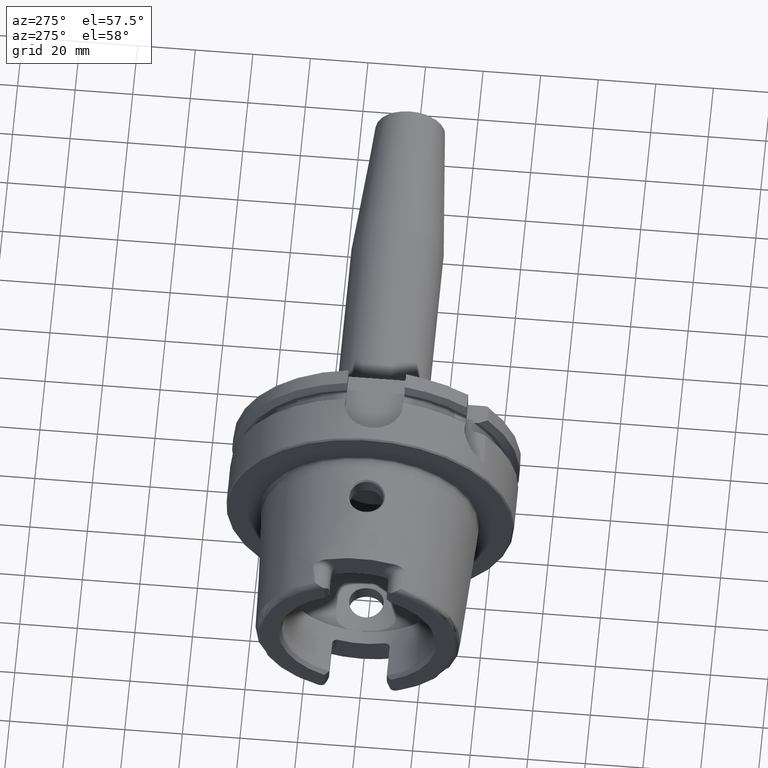
[diagram: clean part render]
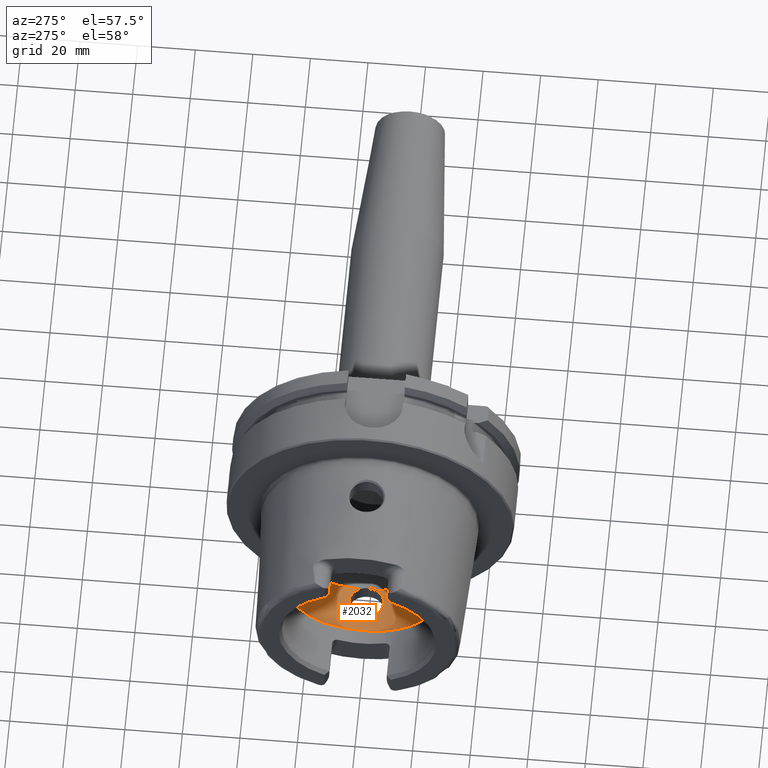
[diagram: same view with one face highlighted and labeled with its STEP entity id]
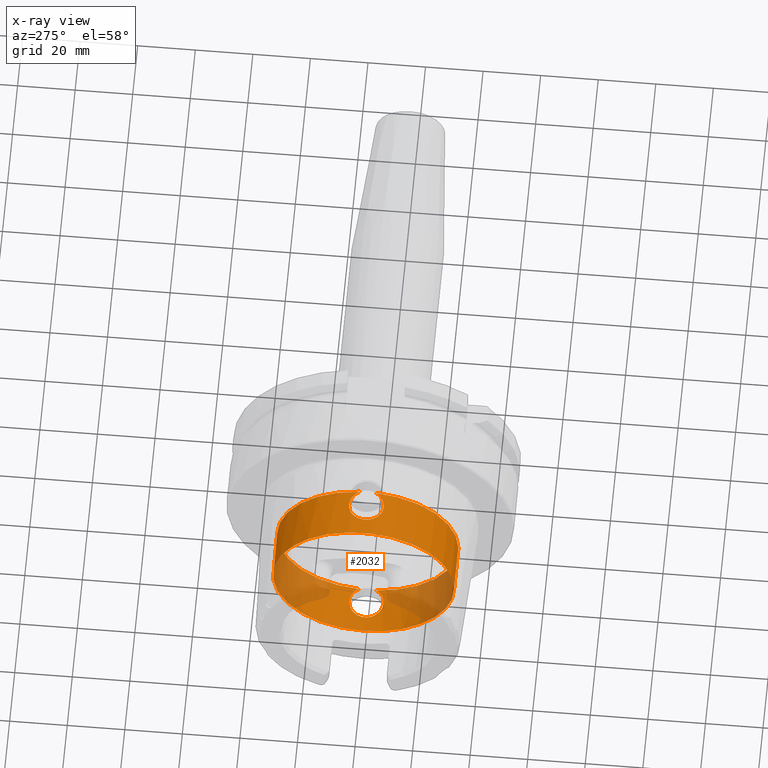
[diagram: x-ray of the same camera — body ghosted, the highlighted face saturated]
A machine part, auxiliary view. The second image highlights one B-rep face of the part: STEP entity #2032.
The next image is the same camera in x-ray: the body ghosted, the highlighted face saturated — about 27% of this face is hidden behind the body in this view.
In plain terms, the highlighted cylindrical surface (bore or boss wall) has radius 31.5 mm, axis along (-1, 0, 0).
Its self-contained STEP definition (entity closure, byte-faithful):
#49=B_SPLINE_CURVE_WITH_KNOTS('',3,(#3627,#3628,#3629,#3630,#3631,#3632,
#3633,#3634,#3635,#3636,#3637,#3638,#3639,#3640,#3641,#3642,#3643,#3644,
#3645,#3646,#3647,#3648,#3649,#3650,#3651,#3652,#3653,#3654,#3655,#3656,
#3657),.UNSPECIFIED.,.F.,.F.,(4,2,2,2,2,2,2,2,2,2,2,3,2,2,4),(-2.42966289251045,
-2.26609494287567,-2.03948128472637,-1.81286762657707,-1.58625396842777,
-1.35964031027847,-1.1330370617835,-0.906433813288535,-0.679830564793567,
-0.453227316298599,-0.226613658149299,0.,0.2266136581493,0.453227316298599,
0.616795265988555),.UNSPECIFIED.);
#54=B_SPLINE_CURVE_WITH_KNOTS('',3,(#3819,#3820,#3821,#3822,#3823,#3824,
#3825,#3826,#3827,#3828,#3829,#3830,#3831,#3832,#3833,#3834,#3835,#3836,
#3837,#3838,#3839,#3840,#3841,#3842,#3843,#3844,#3845,#3846,#3847,#3848,
#3849),.UNSPECIFIED.,.F.,.F.,(4,2,2,3,2,2,2,2,2,2,2,2,2,2,4),(-0.616795265933374,
-0.453227316298598,-0.226613658149299,0.,0.2266136581493,0.453227316298599,
0.679830564793567,0.906433813288535,1.1330370617835,1.35964031027847,1.58625396842777,
1.81286762657707,2.03948128472637,2.26609494287567,2.42966289256562),
 .UNSPECIFIED.);
#187=CYLINDRICAL_SURFACE('',#2230,31.5);
#248=FACE_OUTER_BOUND('',#378,.T.);
#378=EDGE_LOOP('',(#1531,#1532,#1533,#1534,#1535,#1536,#1537,#1538,#1539));
#509=LINE('',#3865,#615);
#615=VECTOR('',#2631,31.5);
#726=CIRCLE('',#2231,31.5);
#727=CIRCLE('',#2232,31.5);
#728=CIRCLE('',#2233,31.5);
#729=CIRCLE('',#2234,31.5);
#730=CIRCLE('',#2235,31.5);
#903=VERTEX_POINT('',#3615);
#904=VERTEX_POINT('',#3626);
#907=VERTEX_POINT('',#3806);
#909=VERTEX_POINT('',#3818);
#910=VERTEX_POINT('',#3862);
#911=VERTEX_POINT('',#3864);
#912=VERTEX_POINT('',#3866);
#1138=EDGE_CURVE('',#904,#903,#49,.T.);
#1144=EDGE_CURVE('',#909,#907,#54,.T.);
#1147=EDGE_CURVE('',#910,#907,#726,.T.);
#1148=EDGE_CURVE('',#910,#911,#509,.T.);
#1149=EDGE_CURVE('',#911,#912,#727,.T.);
#1150=EDGE_CURVE('',#912,#911,#728,.T.);
#1151=EDGE_CURVE('',#904,#910,#729,.T.);
#1152=EDGE_CURVE('',#909,#903,#730,.T.);
#1531=ORIENTED_EDGE('',*,*,#1144,.T.);
#1532=ORIENTED_EDGE('',*,*,#1147,.F.);
#1533=ORIENTED_EDGE('',*,*,#1148,.T.);
#1534=ORIENTED_EDGE('',*,*,#1149,.T.);
#1535=ORIENTED_EDGE('',*,*,#1150,.T.);
#1536=ORIENTED_EDGE('',*,*,#1148,.F.);
#1537=ORIENTED_EDGE('',*,*,#1151,.F.);
#1538=ORIENTED_EDGE('',*,*,#1138,.T.);
#1539=ORIENTED_EDGE('',*,*,#1152,.F.);
#2032=ADVANCED_FACE('',(#248),#187,.F.);
#2230=AXIS2_PLACEMENT_3D('',#3861,#2627,#2628);
#2231=AXIS2_PLACEMENT_3D('',#3863,#2629,#2630);
#2232=AXIS2_PLACEMENT_3D('',#3867,#2632,#2633);
#2233=AXIS2_PLACEMENT_3D('',#3868,#2634,#2635);
#2234=AXIS2_PLACEMENT_3D('',#3869,#2636,#2637);
#2235=AXIS2_PLACEMENT_3D('',#3870,#2638,#2639);
#2627=DIRECTION('center_axis',(-1.,0.,0.));
#2628=DIRECTION('ref_axis',(0.,1.,0.));
#2629=DIRECTION('center_axis',(-1.,0.,0.));
#2630=DIRECTION('ref_axis',(0.,0.,1.));
#2631=DIRECTION('',(-1.,0.,0.));
#2632=DIRECTION('center_axis',(-1.,0.,0.));
#2633=DIRECTION('ref_axis',(0.,0.,1.));
#2634=DIRECTION('center_axis',(-1.,0.,0.));
#2635=DIRECTION('ref_axis',(0.,0.,1.));
#2636=DIRECTION('center_axis',(-1.,0.,0.));
#2637=DIRECTION('ref_axis',(0.,0.,1.));
#2638=DIRECTION('center_axis',(-1.,0.,0.));
#2639=DIRECTION('ref_axis',(0.,0.,1.));
#3615=CARTESIAN_POINT('',(-9.74679434480896,2.89893607109041,-31.3663222207471));
#3626=CARTESIAN_POINT('',(-9.74679434480896,-2.89893607109041,-31.3663222207471));
#3627=CARTESIAN_POINT('Ctrl Pts',(-9.74679434480898,-2.8989360710904,-31.3663222207471));
#3628=CARTESIAN_POINT('Ctrl Pts',(-10.0245557799842,-3.40227174537722,-31.3198029657389));
#3629=CARTESIAN_POINT('Ctrl Pts',(-10.3735944692601,-3.85887584349869,-31.2651415110221));
#3630=CARTESIAN_POINT('Ctrl Pts',(-11.289042660848,-4.77432403508655,-31.140708727458));
#3631=CARTESIAN_POINT('Ctrl Pts',(-11.9624834305428,-5.23577180141274,-31.0633803744766));
#3632=CARTESIAN_POINT('Ctrl Pts',(-13.4401908644727,-5.84865855662958,-30.9538382316308));
#3633=CARTESIAN_POINT('Ctrl Pts',(-14.2446211395023,-6.00000000000001,-30.9232921921325));
#3634=CARTESIAN_POINT('Ctrl Pts',(-15.7553788604977,-6.00000000000001,-30.9232921921325));
#3635=CARTESIAN_POINT('Ctrl Pts',(-16.5598091355273,-5.84865855662958,-30.9538382316308));
#3636=CARTESIAN_POINT('Ctrl Pts',(-18.0375165694572,-5.23577180141275,-31.0633803744766));
#3637=CARTESIAN_POINT('Ctrl Pts',(-18.710957339152,-4.77432403508655,-31.140708727458));
#3638=CARTESIAN_POINT('Ctrl Pts',(-19.7742996118461,-3.71098176239249,-31.2852440928545));
#3639=CARTESIAN_POINT('Ctrl Pts',(-20.2357665181958,-3.03753058698362,-31.3619556484746));
#3640=CARTESIAN_POINT('Ctrl Pts',(-20.8486671603361,-1.55978711209124,-31.4700797313679));
#3641=CARTESIAN_POINT('Ctrl Pts',(-21.,-0.755344161649895,-31.5));
#3642=CARTESIAN_POINT('Ctrl Pts',(-21.,0.755344161649892,-31.5));
#3643=CARTESIAN_POINT('Ctrl Pts',(-20.8486671603361,1.55978711209124,-31.4700797313679));
#3644=CARTESIAN_POINT('Ctrl Pts',(-20.2357665181958,3.03753058698362,-31.3619556484746));
#3645=CARTESIAN_POINT('Ctrl Pts',(-19.7742996118461,3.71098176239249,-31.2852440928545));
#3646=CARTESIAN_POINT('Ctrl Pts',(-18.710957339152,4.77432403508655,-31.140708727458));
#3647=CARTESIAN_POINT('Ctrl Pts',(-18.0375165694572,5.23577180141274,-31.0633803744766));
#3648=CARTESIAN_POINT('Ctrl Pts',(-16.5598091355273,5.84865855662958,-30.9538382316308));
#3649=CARTESIAN_POINT('Ctrl Pts',(-15.7553788604977,6.00000000000001,-30.9232921921325));
#3650=CARTESIAN_POINT('Ctrl Pts',(-15.,6.00000000000001,-30.9232921921325));
#3651=CARTESIAN_POINT('Ctrl Pts',(-14.2446211395023,6.00000000000001,-30.9232921921325));
#3652=CARTESIAN_POINT('Ctrl Pts',(-13.4401908644727,5.84865855662958,-30.9538382316308));
#3653=CARTESIAN_POINT('Ctrl Pts',(-11.9624834305428,5.23577180141274,-31.0633803744766));
#3654=CARTESIAN_POINT('Ctrl Pts',(-11.289042660848,4.77432403508655,-31.140708727458));
#3655=CARTESIAN_POINT('Ctrl Pts',(-10.3735944691306,3.85887584336922,-31.2651415110397));
#3656=CARTESIAN_POINT('Ctrl Pts',(-10.0245557801354,3.40227174565105,-31.3198029657135));
#3657=CARTESIAN_POINT('Ctrl Pts',(-9.74679434480898,2.8989360710904,-31.3663222207471));
#3806=CARTESIAN_POINT('',(-9.74679434480896,-2.89893607109042,31.3663222207471));
#3818=CARTESIAN_POINT('',(-9.74679434480896,2.89893607109042,31.3663222207471));
#3819=CARTESIAN_POINT('Ctrl Pts',(-9.74679434480897,2.89893607109041,31.3663222207471));
#3820=CARTESIAN_POINT('Ctrl Pts',(-10.0245557799842,3.40227174537723,31.3198029657389));
#3821=CARTESIAN_POINT('Ctrl Pts',(-10.3735944692601,3.85887584349869,31.2651415110221));
#3822=CARTESIAN_POINT('Ctrl Pts',(-11.289042660848,4.77432403508655,31.140708727458));
#3823=CARTESIAN_POINT('Ctrl Pts',(-11.9624834305428,5.23577180141274,31.0633803744766));
#3824=CARTESIAN_POINT('Ctrl Pts',(-13.4401908644727,5.84865855662958,30.9538382316308));
#3825=CARTESIAN_POINT('Ctrl Pts',(-14.2446211395023,6.00000000000001,30.9232921921325));
#3826=CARTESIAN_POINT('Ctrl Pts',(-15.,6.00000000000001,30.9232921921325));
#3827=CARTESIAN_POINT('Ctrl Pts',(-15.7553788604977,6.00000000000001,30.9232921921325));
#3828=CARTESIAN_POINT('Ctrl Pts',(-16.5598091355273,5.84865855662958,30.9538382316308));
#3829=CARTESIAN_POINT('Ctrl Pts',(-18.0375165694572,5.23577180141274,31.0633803744766));
#3830=CARTESIAN_POINT('Ctrl Pts',(-18.710957339152,4.77432403508655,31.140708727458));
#3831=CARTESIAN_POINT('Ctrl Pts',(-19.7742996118461,3.71098176239249,31.2852440928545));
#3832=CARTESIAN_POINT('Ctrl Pts',(-20.2357665181958,3.03753058698362,31.3619556484746));
#3833=CARTESIAN_POINT('Ctrl Pts',(-20.8486671603361,1.55978711209124,31.4700797313679));
#3834=CARTESIAN_POINT('Ctrl Pts',(-21.,0.755344161649892,31.5));
#3835=CARTESIAN_POINT('Ctrl Pts',(-21.,-0.755344161649894,31.5));
#3836=CARTESIAN_POINT('Ctrl Pts',(-20.8486671603361,-1.55978711209124,31.4700797313679));
#3837=CARTESIAN_POINT('Ctrl Pts',(-20.2357665181958,-3.03753058698362,31.3619556484746));
#3838=CARTESIAN_POINT('Ctrl Pts',(-19.7742996118461,-3.71098176239249,31.2852440928545));
#3839=CARTESIAN_POINT('Ctrl Pts',(-18.710957339152,-4.77432403508655,31.140708727458));
#3840=CARTESIAN_POINT('Ctrl Pts',(-18.0375165694572,-5.23577180141274,31.0633803744766));
#3841=CARTESIAN_POINT('Ctrl Pts',(-16.5598091355273,-5.84865855662958,30.9538382316308));
#3842=CARTESIAN_POINT('Ctrl Pts',(-15.7553788604977,-6.00000000000001,30.9232921921325));
#3843=CARTESIAN_POINT('Ctrl Pts',(-14.2446211395023,-6.00000000000001,30.9232921921325));
#3844=CARTESIAN_POINT('Ctrl Pts',(-13.4401908644727,-5.84865855662958,30.9538382316308));
#3845=CARTESIAN_POINT('Ctrl Pts',(-11.9624834305428,-5.23577180141274,31.0633803744766));
#3846=CARTESIAN_POINT('Ctrl Pts',(-11.289042660848,-4.77432403508655,31.140708727458));
#3847=CARTESIAN_POINT('Ctrl Pts',(-10.3735944691306,-3.85887584336922,31.2651415110397));
#3848=CARTESIAN_POINT('Ctrl Pts',(-10.0245557801353,-3.40227174565106,31.3198029657135));
#3849=CARTESIAN_POINT('Ctrl Pts',(-9.74679434480897,-2.89893607109041,31.3663222207471));
#3861=CARTESIAN_POINT('Origin',(-18.1430342013226,0.,0.));
#3862=CARTESIAN_POINT('',(-9.74679434480896,-31.5,3.85763741731416E-15));
#3863=CARTESIAN_POINT('Origin',(-9.74679434480896,0.,0.));
#3864=CARTESIAN_POINT('',(-26.5392740578363,-31.5,3.85763741731416E-15));
#3865=CARTESIAN_POINT('',(-18.1430342013226,-31.5,3.85763741731416E-15));
#3866=CARTESIAN_POINT('',(-26.5392740578363,-3.85763741731416E-15,-31.5));
#3867=CARTESIAN_POINT('Origin',(-26.5392740578363,0.,0.));
#3868=CARTESIAN_POINT('Origin',(-26.5392740578363,0.,0.));
#3869=CARTESIAN_POINT('Origin',(-9.74679434480896,0.,0.));
#3870=CARTESIAN_POINT('Origin',(-9.74679434480896,0.,0.));